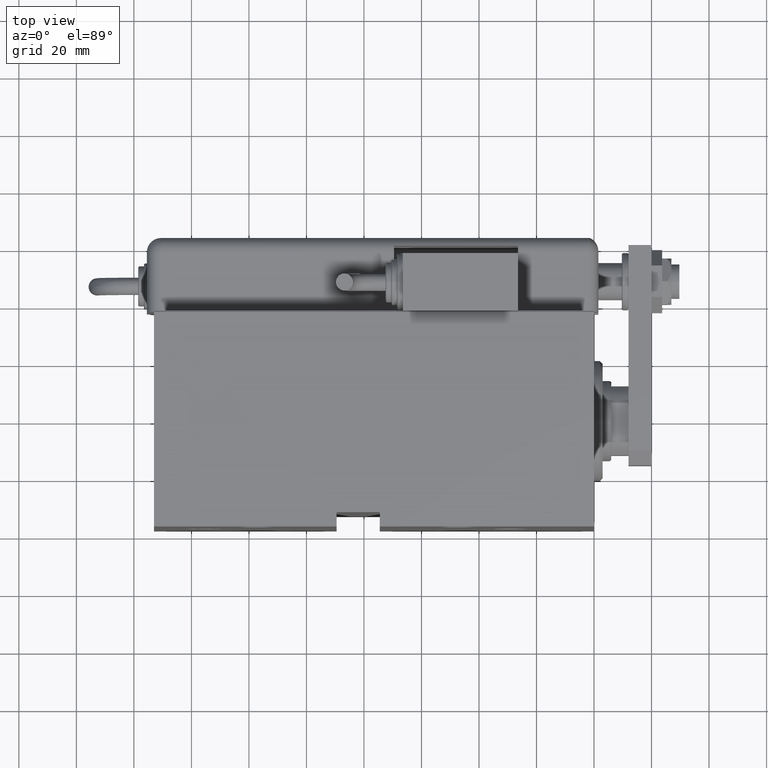
[diagram: clean part render]
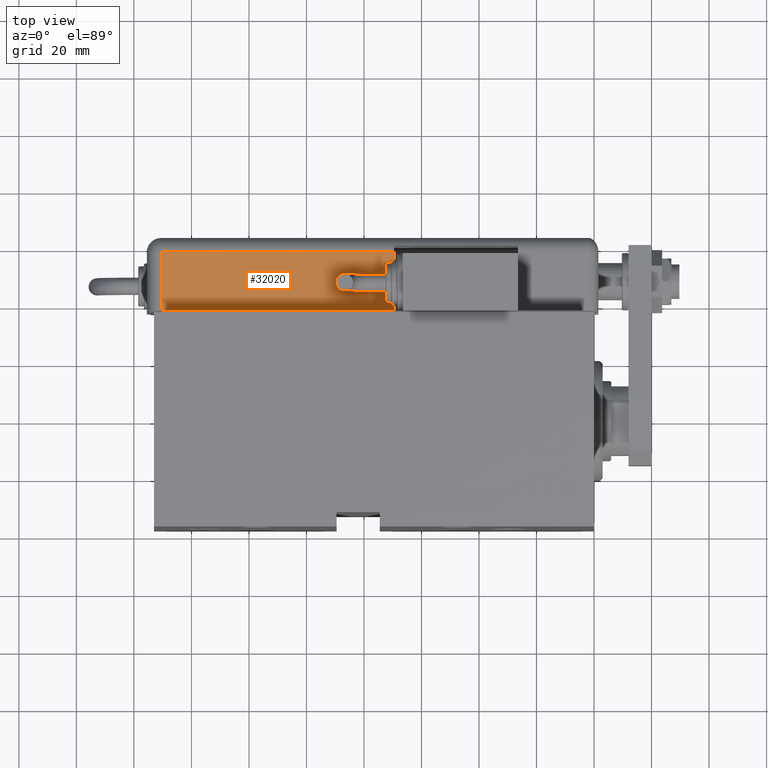
[diagram: same view with one face highlighted and labeled with its STEP entity id]
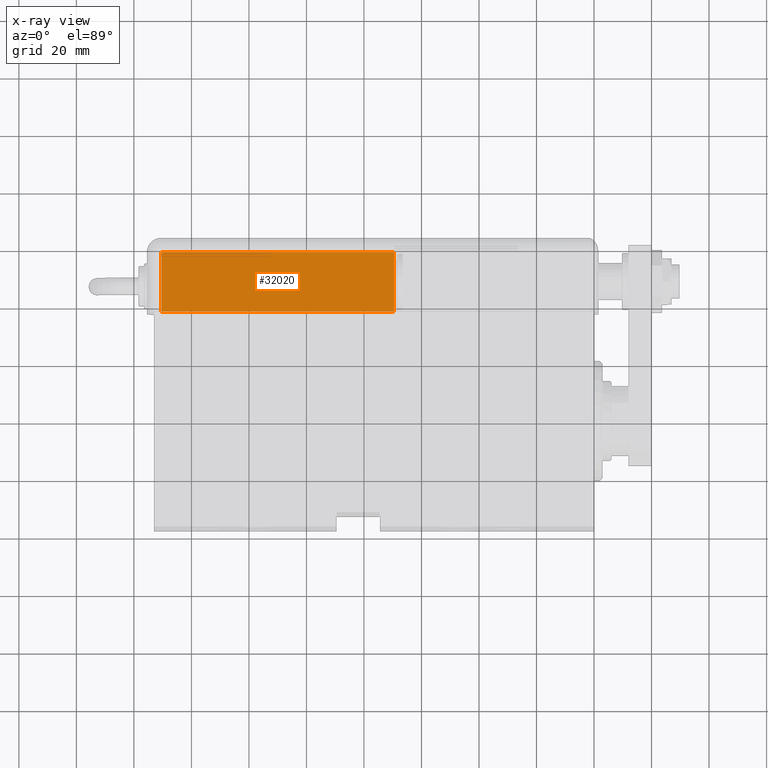
[diagram: x-ray of the same camera — body ghosted, the highlighted face saturated]
A machine part, top view. The second image highlights one B-rep face of the part: STEP entity #32020.
The next image is the same camera in x-ray: the body ghosted, the highlighted face saturated — about 0% of this face is hidden behind the body in this view.
In plain terms, the highlighted planar face has unit normal (0, 0, -1).
Its self-contained STEP definition (entity closure, byte-faithful):
#3258 = PLANE ( 'NONE',  #43897 ) ;
#3906 = DIRECTION ( 'NONE',  ( -0.000000000000000000, -0.000000000000000000, -1.000000000000000000 ) ) ;
#3947 = CARTESIAN_POINT ( 'NONE',  ( -28.99999999999999645, -9.421223957302264279E-15, 86.00000000000000000 ) ) ;
#5083 = EDGE_CURVE ( 'NONE', #52551, #47899, #17607, .T. ) ;
#7573 = ORIENTED_EDGE ( 'NONE', *, *, #5083, .T. ) ;
#7645 = VERTEX_POINT ( 'NONE', #51802 ) ;
#12538 = LINE ( 'NONE', #29780, #38252 ) ;
#15283 = CARTESIAN_POINT ( 'NONE',  ( -28.99999999999999645, 20.79999999999998295, 86.00000000000000000 ) ) ;
#16649 = EDGE_CURVE ( 'NONE', #47899, #7645, #12538, .T. ) ;
#17245 = ORIENTED_EDGE ( 'NONE', *, *, #35926, .F. ) ;
#17270 = CARTESIAN_POINT ( 'NONE',  ( -28.99999999999999645, -9.421223957302265857E-15, 154.0000000000000000 ) ) ;
#17607 = LINE ( 'NONE', #22067, #32737 ) ;
#18209 = VECTOR ( 'NONE', #3906, 1000.000000000000000 ) ;
#20368 = VECTOR ( 'NONE', #28961, 1000.000000000000000 ) ;
#22067 = CARTESIAN_POINT ( 'NONE',  ( -28.99999999999999645, 20.79999999999998295, 154.0000000000000000 ) ) ;
#22912 = LINE ( 'NONE', #17270, #18209 ) ;
#23086 = VERTEX_POINT ( 'NONE', #3947 ) ;
#23917 = CARTESIAN_POINT ( 'NONE',  ( -28.99999999999999645, 22.99999999999998934, 86.00000000000000000 ) ) ;
#25545 = ORIENTED_EDGE ( 'NONE', *, *, #16649, .T. ) ;
#28961 = DIRECTION ( 'NONE',  ( 0.000000000000000000, -1.000000000000000000, 0.000000000000000000 ) ) ;
#29220 = EDGE_CURVE ( 'NONE', #23086, #7645, #22912, .T. ) ;
#29780 = CARTESIAN_POINT ( 'NONE',  ( -28.99999999999999645, -1.040834085586084257E-14, 5.000000000000004441 ) ) ;
#31292 = ORIENTED_EDGE ( 'NONE', *, *, #29220, .F. ) ;
#32020 = ADVANCED_FACE ( 'NONE', ( #51627 ), #3258, .F. ) ;
#32737 = VECTOR ( 'NONE', #44004, 1000.000000000000000 ) ;
#33220 = EDGE_LOOP ( 'NONE', ( #31292, #17245, #7573, #25545 ) ) ;
#34729 = DIRECTION ( 'NONE',  ( 1.000000000000000000, 0.000000000000000000, -0.000000000000000000 ) ) ;
#34803 = DIRECTION ( 'NONE',  ( 0.000000000000000000, -1.000000000000000000, 0.000000000000000000 ) ) ;
#35926 = EDGE_CURVE ( 'NONE', #52551, #23086, #46697, .T. ) ;
#38252 = VECTOR ( 'NONE', #34803, 1000.000000000000000 ) ;
#38604 = CARTESIAN_POINT ( 'NONE',  ( -28.99999999999999645, 25.79999999999998295, 154.0000000000000000 ) ) ;
#43319 = DIRECTION ( 'NONE',  ( -0.000000000000000000, 0.000000000000000000, -1.000000000000000000 ) ) ;
#43897 = AXIS2_PLACEMENT_3D ( 'NONE', #38604, #34729, #43319 ) ;
#44004 = DIRECTION ( 'NONE',  ( 0.000000000000000000, 0.000000000000000000, -1.000000000000000000 ) ) ;
#46697 = LINE ( 'NONE', #23917, #20368 ) ;
#47899 = VERTEX_POINT ( 'NONE', #55999 ) ;
#51627 = FACE_OUTER_BOUND ( 'NONE', #33220, .T. ) ;
#51802 = CARTESIAN_POINT ( 'NONE',  ( -28.99999999999999645, -9.421223957302265857E-15, 5.000000000000004441 ) ) ;
#52551 = VERTEX_POINT ( 'NONE', #15283 ) ;
#55999 = CARTESIAN_POINT ( 'NONE',  ( -28.99999999999999645, 20.79999999999998295, 5.000000000000004441 ) ) ;